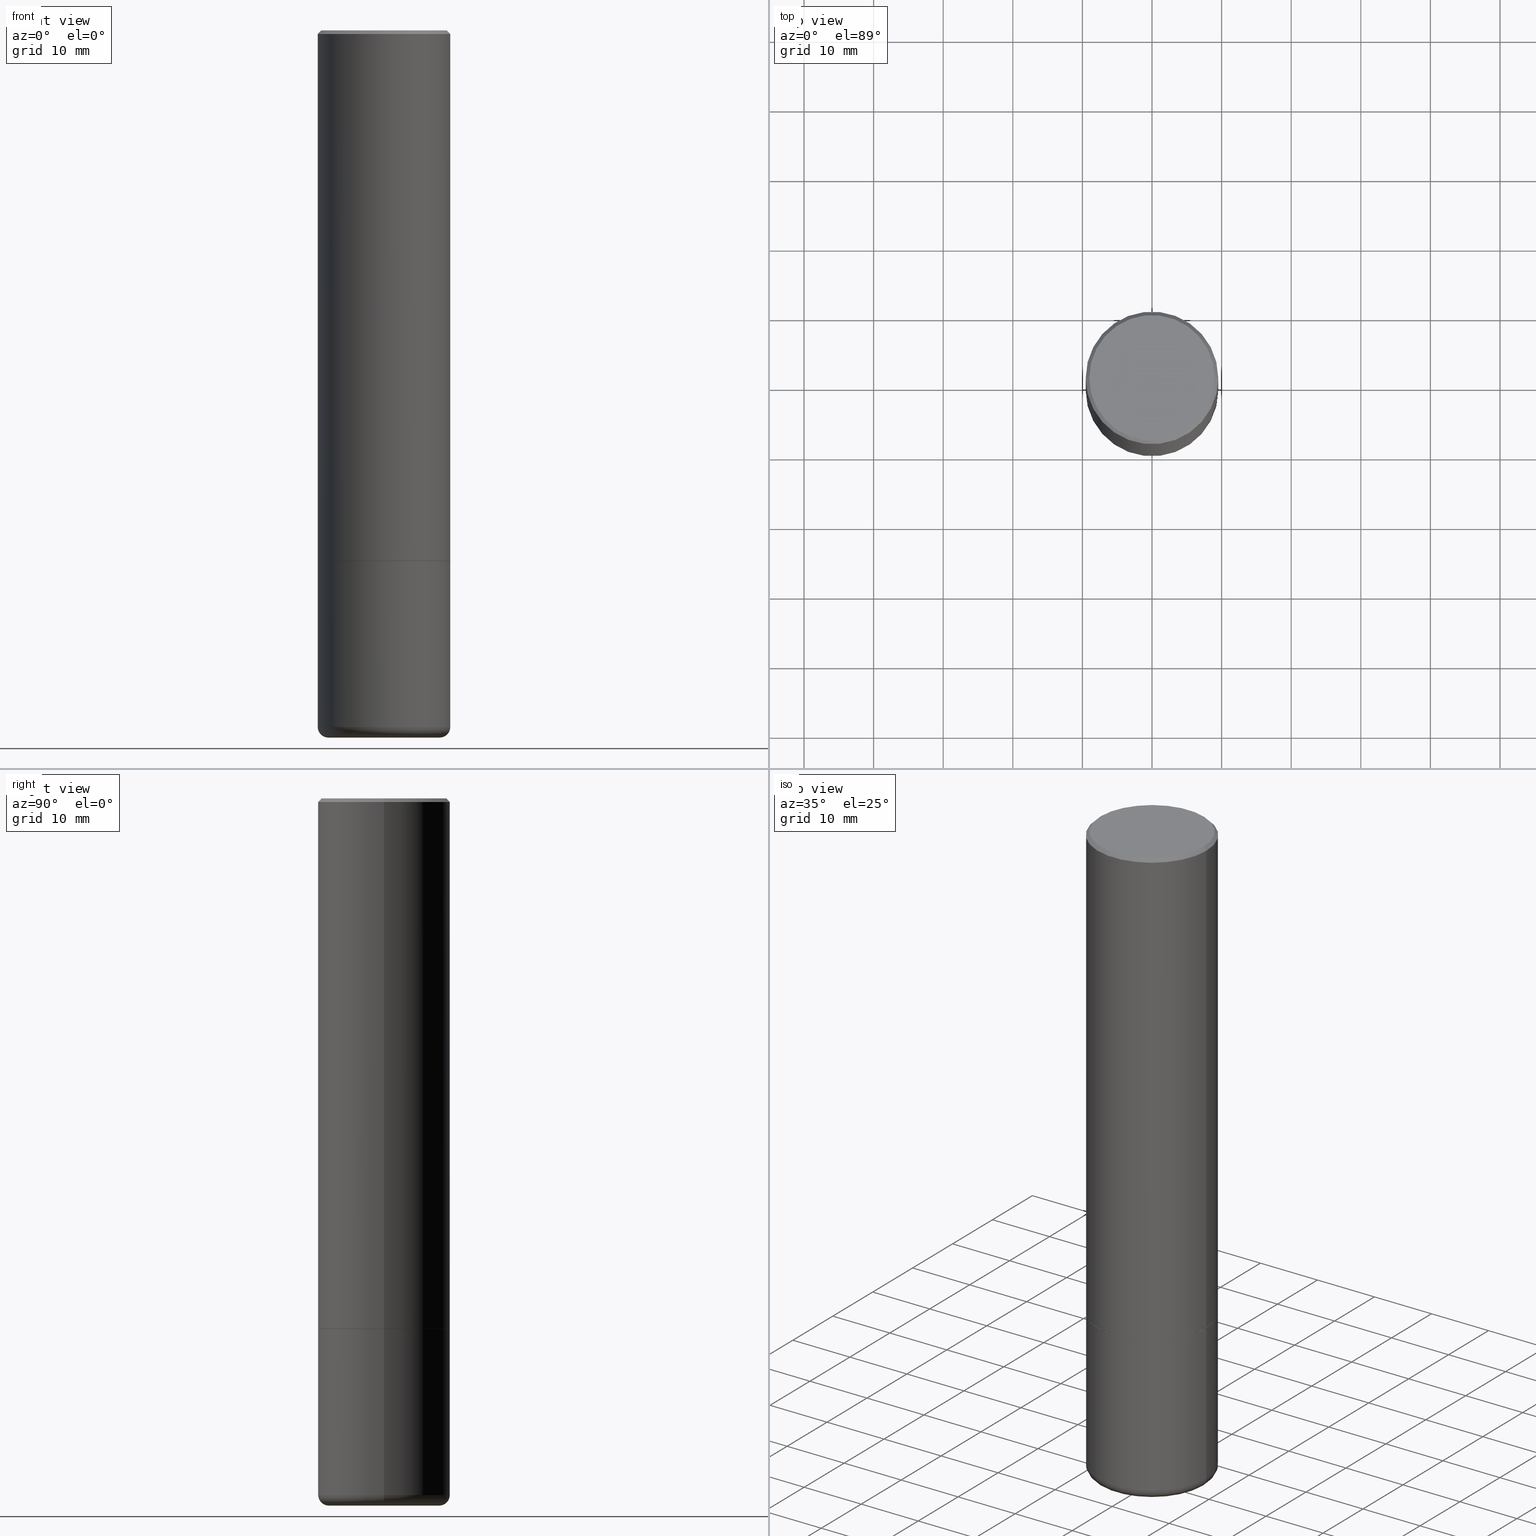
[diagram: canonical four-view strip — front | top / right | iso, engineering-drawing reading convention]
A machine part, canonical four-view strip (front | top / right | iso — engineering-drawing reading convention). The complete STEP part file that produces these views, byte-faithful:
ISO-10303-21;
HEADER;
FILE_DESCRIPTION (( 'STEP AP203' ),
    '1' );
FILE_NAME ('35718.STEP',
    '2022-11-02T20:51:11',
    ( '' ),
    ( '' ),
    'SwSTEP 2.0',
    'SolidWorks 2022',
    '' );
FILE_SCHEMA (( 'CONFIG_CONTROL_DESIGN' ));
ENDSEC;

DATA;
#1 = CARTESIAN_POINT ( 'NONE',  ( -0.3144764078700981180, -1.141167263810427951E-14, -3.999999999999999556 ) ) ;
#2 = DIRECTION ( 'NONE',  ( -2.445468806185136597E-29, 3.491481338843145583E-15, 1.000000000000000000 ) ) ;
#3 = AXIS2_PLACEMENT_3D ( 'NONE', #208, #99, #251 ) ;
#4 = DATE_AND_TIME ( #416, #127 ) ;
#5 = VERTEX_POINT ( 'NONE', #72 ) ;
#6 = ADVANCED_FACE ( 'NONE', ( #216 ), #477, .T. ) ;
#7 = COORDINATED_UNIVERSAL_TIME_OFFSET ( 5, 0, .BEHIND. ) ;
#8 = ORIENTED_EDGE ( 'NONE', *, *, #370, .F. ) ;
#9 = VERTEX_POINT ( 'NONE', #410 ) ;
#10 = ORIENTED_EDGE ( 'NONE', *, *, #321, .F. ) ;
#11 = CIRCLE ( 'NONE', #362, 0.3750000000000000555 ) ;
#12 = CALENDAR_DATE ( 2022, 2, 11 ) ;
#13 = PRODUCT_DEFINITION_FORMATION_WITH_SPECIFIED_SOURCE ( 'ANY', '', #43, .NOT_KNOWN. ) ;
#14 = VERTEX_POINT ( 'NONE', #78 ) ;
#15 = EDGE_CURVE ( 'NONE', #421, #14, #221, .T. ) ;
#16 = CARTESIAN_POINT ( 'NONE',  ( 4.890937612370327459E-31, -6.982962677686369262E-17, -0.02000000000000022246 ) ) ;
#17 = DATE_AND_TIME ( #12, #447 ) ;
#18 = EDGE_CURVE ( 'NONE', #9, #407, #233, .T. ) ;
#19 = ORIENTED_EDGE ( 'NONE', *, *, #18, .F. ) ;
#20 = ADVANCED_FACE ( 'NONE', ( #175 ), #200, .T. ) ;
#21 = DIRECTION ( 'NONE',  ( 1.000000000000000000, -6.982962677686266711E-15, 0.000000000000000000 ) ) ;
#22 = LINE ( 'NONE', #65, #108 ) ;
#23 = ORGANIZATION ( 'UNSPECIFIED', 'UNSPECIFIED', '' ) ;
#24 = ORIENTED_EDGE ( 'NONE', *, *, #334, .F. ) ;
#25 = DIRECTION ( 'NONE',  ( -2.445468806185136597E-29, 3.491481338843145583E-15, 1.000000000000000000 ) ) ;
#26 = DIRECTION ( 'NONE',  ( -2.445468806185136877E-29, 3.491481338843145188E-15, 1.000000000000000000 ) ) ;
#27 = DIRECTION ( 'NONE',  ( 1.000000000000000000, -6.982962677686266711E-15, 0.000000000000000000 ) ) ;
#28 = CARTESIAN_POINT ( 'NONE',  ( 9.781021626775434250E-29, -1.396470664370530441E-14, -3.999650947105539256 ) ) ;
#29 = APPROVAL ( #431, 'UNSPECIFIED' ) ;
#30 = ADVANCED_FACE ( 'NONE', ( #403 ), #31, .T. ) ;
#31 = CONICAL_SURFACE ( 'NONE', #79, 0.3749999999999991673, 0.7853981633974476129 ) ;
#32 = DIRECTION ( 'NONE',  ( -2.445468806185136597E-29, 3.491481338843145583E-15, 1.000000000000000000 ) ) ;
#33 = CARTESIAN_POINT ( 'NONE',  ( 9.781021626775434250E-29, -1.396470664370530441E-14, -3.999650947105539256 ) ) ;
#34 = DIRECTION ( 'NONE',  ( -2.445468806185136597E-29, 3.491481338843145583E-15, 1.000000000000000000 ) ) ;
#35 = CARTESIAN_POINT ( 'NONE',  ( -0.3749999999999993894, -2.605855821883354597E-15, -2.999000000000000554 ) ) ;
#36 = DIRECTION ( 'NONE',  ( 1.000000000000000000, -6.982962677686269077E-15, 4.883557194083113462E-29 ) ) ;
#37 = LINE ( 'NONE', #227, #312 ) ;
#38 = AXIS2_PLACEMENT_3D ( 'NONE', #294, #177, #398 ) ;
#39 = DIRECTION ( 'NONE',  ( -1.000000000000000000, 6.982962677686266711E-15, 0.000000000000000000 ) ) ;
#40 = CARTESIAN_POINT ( 'NONE',  ( 4.890937612370327459E-31, -6.982962677686369262E-17, -0.02000000000000022246 ) ) ;
#41 = CARTESIAN_POINT ( 'NONE',  ( 0.3749999999999995004, -1.308956353932294179E-14, -2.999000000000000554 ) ) ;
#42 = ADVANCED_BREP_SHAPE_REPRESENTATION ( '35718', ( #166, #488, #141 ), #223 ) ;
#43 = PRODUCT ( '35718', '35718', '', ( #247 ) ) ;
#44 = PLANE ( 'NONE',  #210 ) ;
#45 = ORIENTED_EDGE ( 'NONE', *, *, #50, .F. ) ;
#46 = CIRCLE ( 'NONE', #125, 0.3750000000000000555 ) ;
#47 = AXIS2_PLACEMENT_3D ( 'NONE', #415, #2, #189 ) ;
#48 = APPROVAL_ROLE ( '' ) ;
#49 = ORIENTED_EDGE ( 'NONE', *, *, #52, .T. ) ;
#50 = EDGE_CURVE ( 'NONE', #444, #115, #438, .T. ) ;
#51 = EDGE_LOOP ( 'NONE', ( #284, #269, #272, #134 ) ) ;
#52 = EDGE_CURVE ( 'NONE', #373, #5, #138, .T. ) ;
#53 = AXIS2_PLACEMENT_3D ( 'NONE', #364, #34, #261 ) ;
#54 = AXIS2_PLACEMENT_3D ( 'NONE', #180, #353, #397 ) ;
#55 = APPROVAL_ROLE ( '' ) ;
#56 = VECTOR ( 'NONE', #193, 39.37007874015748143 ) ;
#57 = ORIENTED_EDGE ( 'NONE', *, *, #242, .T. ) ;
#58 = ADVANCED_FACE ( 'NONE', ( #71 ), #471, .F. ) ;
#59 = EDGE_CURVE ( 'NONE', #89, #14, #150, .T. ) ;
#60 = CARTESIAN_POINT ( 'NONE',  ( -0.2744789078700980989, -1.204803067423632125E-14, -3.999650947105539256 ) ) ;
#61 = ORIENTED_EDGE ( 'NONE', *, *, #375, .F. ) ;
#62 = UNCERTAINTY_MEASURE_WITH_UNIT (LENGTH_MEASURE( 1.000000000000000082E-05 ), #114, 'distance_accuracy_value', 'NONE');
#63 = CARTESIAN_POINT ( 'NONE',  ( 7.336406418555408669E-29, -1.047444401652943478E-14, -2.999999999999999556 ) ) ;
#64 = CIRCLE ( 'NONE', #244, 0.3749999999999995004 ) ;
#65 = CARTESIAN_POINT ( 'NONE',  ( -0.3144764078700981180, -1.176994833620283991E-14, -3.999999999999999556 ) ) ;
#66 = CARTESIAN_POINT ( 'NONE',  ( 7.336406418555408669E-29, -1.047444401652943478E-14, -2.999999999999999556 ) ) ;
#67 = DIRECTION ( 'NONE',  ( -2.445468806185136597E-29, 3.491481338843145583E-15, 1.000000000000000000 ) ) ;
#68 = DIRECTION ( 'NONE',  ( 2.445468806185136597E-29, -3.491481338843145583E-15, -1.000000000000000000 ) ) ;
#69 = CARTESIAN_POINT ( 'NONE',  ( 9.635152683326964355E-29, -1.375644445173664487E-14, -3.940002284616149097 ) ) ;
#70 = DIRECTION ( 'NONE',  ( 0.9999619230641714207, -6.890705306874777996E-15, -0.008726535498355246501 ) ) ;
#71 = FACE_OUTER_BOUND ( 'NONE', #90, .T. ) ;
#72 = CARTESIAN_POINT ( 'NONE',  ( 0.3549999999999989275, -2.538996582575033948E-15, 4.268512490117958041E-18 ) ) ;
#73 = CONICAL_SURFACE ( 'NONE', #196, 0.3739999999999994995, 0.7853981633978239785 ) ;
#74 = ADVANCED_FACE ( 'NONE', ( #405 ), #209, .T. ) ;
#75 = DIRECTION ( 'NONE',  ( 0.7071067811868130271, -2.468850131085038979E-15, 0.7071067811862817853 ) ) ;
#76 = CARTESIAN_POINT ( 'NONE',  ( 9.781875224740545266E-29, -1.396592535537258075E-14, -3.999999999999999556 ) ) ;
#77 = DIRECTION ( 'NONE',  ( -2.445468806185136877E-29, 3.491481338843145188E-15, 1.000000000000000000 ) ) ;
#78 = CARTESIAN_POINT ( 'NONE',  ( -0.3749999999999991673, 2.548781377355480407E-15, -0.02000000000000022246 ) ) ;
#79 = AXIS2_PLACEMENT_3D ( 'NONE', #476, #473, #290 ) ;
#80 = EDGE_CURVE ( 'NONE', #231, #421, #365, .T. ) ;
#81 = CONICAL_SURFACE ( 'NONE', #479, 0.2744789078700980989, 1.535889741755008808 ) ;
#82 = CARTESIAN_POINT ( 'NONE',  ( 0.3150000000000002798, -1.595607769520781983E-14, -3.940002284616149097 ) ) ;
#83 = DIRECTION ( 'NONE',  ( 1.000000000000000000, -6.982962677686266711E-15, 0.000000000000000000 ) ) ;
#84 = CARTESIAN_POINT ( 'NONE',  ( -0.3549999999999989275, 2.513866563967048758E-15, 4.268512490082953109E-18 ) ) ;
#85 = ORIENTED_EDGE ( 'NONE', *, *, #80, .F. ) ;
#86 = ORIENTED_EDGE ( 'NONE', *, *, #486, .T. ) ;
#87 = COORDINATED_UNIVERSAL_TIME_OFFSET ( 5, 0, .BEHIND. ) ;
#88 = LOCAL_TIME ( 16, 51, 11.00000000000000000, #306 ) ;
#89 = VERTEX_POINT ( 'NONE', #324 ) ;
#90 = EDGE_LOOP ( 'NONE', ( #350, #170 ) ) ;
#91 = ADVANCED_FACE ( 'NONE', ( #483 ), #204, .F. ) ;
#92 = PERSON_AND_ORGANIZATION_ROLE ( 'design_supplier' ) ;
#93 = ORIENTED_EDGE ( 'NONE', *, *, #422, .T. ) ;
#94 = CLOSED_SHELL ( 'NONE', ( #169, #74, #20, #360, #179, #430, #148, #326, #91 ) ) ;
#95 = VECTOR ( 'NONE', #257, 39.37007874015748854 ) ;
#96 = CALENDAR_DATE ( 2022, 2, 11 ) ;
#97 = VERTEX_POINT ( 'NONE', #1 ) ;
#98 = DIRECTION ( 'NONE',  ( 2.445468806185136597E-29, -3.491481338843145583E-15, -1.000000000000000000 ) ) ;
#99 = DIRECTION ( 'NONE',  ( 2.445468806185136597E-29, -3.491481338843145583E-15, -1.000000000000000000 ) ) ;
#100 = AXIS2_PLACEMENT_3D ( 'NONE', #347, #351, #131 ) ;
#101 = CARTESIAN_POINT ( 'NONE',  ( 0.3739999999999994995, -1.308607205798409720E-14, -2.999999999999999556 ) ) ;
#102 = AXIS2_PLACEMENT_3D ( 'NONE', #331, #192, #413 ) ;
#103 = CC_DESIGN_DATE_AND_TIME_ASSIGNMENT ( #17, #199, ( #229 ) ) ;
#104 = DIRECTION ( 'NONE',  ( 1.000000000000000000, -6.982962677686267499E-15, 4.876176775795935232E-29 ) ) ;
#105 = ADVANCED_FACE ( 'NONE', ( #156 ), #329, .T. ) ;
#106 = FACE_OUTER_BOUND ( 'NONE', #381, .T. ) ;
#107 = LINE ( 'NONE', #303, #56 ) ;
#108 = VECTOR ( 'NONE', #472, 39.37007874015748854 ) ;
#109 = AXIS2_PLACEMENT_3D ( 'NONE', #82, #328, #219 ) ;
#110 = CARTESIAN_POINT ( 'NONE',  ( -0.2744789078700980989, -1.204803067423632125E-14, -3.999650947105539256 ) ) ;
#111 = DIRECTION ( 'NONE',  ( -2.445468806185136597E-29, 3.491481338843145583E-15, 1.000000000000000000 ) ) ;
#112 = DIRECTION ( 'NONE',  ( -2.445468806185136597E-29, 3.491481338843145583E-15, 1.000000000000000000 ) ) ;
#113 = ORIENTED_EDGE ( 'NONE', *, *, #436, .F. ) ;
#114 =( CONVERSION_BASED_UNIT ( 'INCH', #367 ) LENGTH_UNIT ( ) NAMED_UNIT ( #186 ) );
#115 = VERTEX_POINT ( 'NONE', #119 ) ;
#116 = CIRCLE ( 'NONE', #348, 0.2744789078700980989 ) ;
#117 = EDGE_CURVE ( 'NONE', #378, #288, #11, .T. ) ;
#118 = EDGE_CURVE ( 'NONE', #288, #407, #191, .T. ) ;
#119 = CARTESIAN_POINT ( 'NONE',  ( 0.2744789078700980989, -1.584776864157862841E-14, -3.999650947105539256 ) ) ;
#120 = LINE ( 'NONE', #110, #158 ) ;
#121 = ORIENTED_EDGE ( 'NONE', *, *, #59, .F. ) ;
#122 = DIRECTION ( 'NONE',  ( 1.000000000000000000, 0.000000000000000000, 0.000000000000000000 ) ) ;
#123 = ORIENTED_EDGE ( 'NONE', *, *, #395, .T. ) ;
#124 = PRODUCT_RELATED_PRODUCT_CATEGORY ( 'detail', '', ( #43 ) ) ;
#125 = AXIS2_PLACEMENT_3D ( 'NONE', #318, #358, #286 ) ;
#126 = LOCAL_TIME ( 16, 51, 11.00000000000000000, #87 ) ;
#127 = LOCAL_TIME ( 16, 51, 11.00000000000000000, #201 ) ;
#128 = APPLICATION_PROTOCOL_DEFINITION ( 'international standard', 'config_control_design', 1994, #302 ) ;
#129 = EDGE_LOOP ( 'NONE', ( #237, #315, #174, #195 ) ) ;
#130 = PERSON_AND_ORGANIZATION ( #396, #23 ) ;
#131 = DIRECTION ( 'NONE',  ( 1.000000000000000000, -6.982962677686265922E-15, 4.876176775795935793E-29 ) ) ;
#132 = APPROVAL_DATE_TIME ( #4, #29 ) ;
#133 = DIRECTION ( 'NONE',  ( 1.000000000000000000, -6.982962677686266711E-15, 0.000000000000000000 ) ) ;
#134 = ORIENTED_EDGE ( 'NONE', *, *, #242, .F. ) ;
#135 = DIRECTION ( 'NONE',  ( -2.445468806185136597E-29, 3.491481338843145583E-15, 1.000000000000000000 ) ) ;
#136 = LINE ( 'NONE', #442, #374 ) ;
#137 = DIRECTION ( 'NONE',  ( -2.445468806185136597E-29, 3.491481338843145583E-15, 1.000000000000000000 ) ) ;
#138 = CIRCLE ( 'NONE', #439, 0.3549999999999989275 ) ;
#139 = DIRECTION ( 'NONE',  ( -2.445468806185136597E-29, 3.491481338843145583E-15, 1.000000000000000000 ) ) ;
#140 = DIRECTION ( 'NONE',  ( -2.445468806185136597E-29, 3.491481338843145583E-15, 1.000000000000000000 ) ) ;
#141 = AXIS2_PLACEMENT_3D ( 'NONE', #461, #281, #122 ) ;
#142 = CARTESIAN_POINT ( 'NONE',  ( -0.3739999999999994995, -7.817014184786664031E-15, -2.999999999999999556 ) ) ;
#143 = DIRECTION ( 'NONE',  ( -1.000000000000000000, 6.982962677686266711E-15, 0.000000000000000000 ) ) ;
#144 = ORIENTED_EDGE ( 'NONE', *, *, #417, .T. ) ;
#145 = CARTESIAN_POINT ( 'NONE',  ( 9.781875224740545266E-29, -1.396592535537258075E-14, -3.999999999999999556 ) ) ;
#146 = DIRECTION ( 'NONE',  ( -1.000000000000000000, 7.105427357600993970E-15, 0.000000000000000000 ) ) ;
#147 = DIRECTION ( 'NONE',  ( 1.000000000000000000, -6.982962677686269077E-15, 0.000000000000000000 ) ) ;
#148 = ADVANCED_FACE ( 'NONE', ( #492 ), #154, .T. ) ;
#149 = CLOSED_SHELL ( 'NONE', ( #217, #313, #30, #105, #220, #6, #58, #474 ) ) ;
#150 = CIRCLE ( 'NONE', #459, 0.3749999999999991673 ) ;
#151 = AXIS2_PLACEMENT_3D ( 'NONE', #435, #139, #214 ) ;
#152 = DIRECTION ( 'NONE',  ( 2.438088387897960049E-29, -3.491481338843145188E-15, -1.000000000000000000 ) ) ;
#153 = ORIENTED_EDGE ( 'NONE', *, *, #417, .F. ) ;
#154 = CYLINDRICAL_SURFACE ( 'NONE', #190, 0.3749999999999997780 ) ;
#155 = EDGE_CURVE ( 'NONE', #14, #89, #316, .T. ) ;
#156 = FACE_OUTER_BOUND ( 'NONE', #400, .T. ) ;
#157 = CARTESIAN_POINT ( 'NONE',  ( 2.618611004132419436E-15, 0.3749999999999890088, -3.000000000000000888 ) ) ;
#158 = VECTOR ( 'NONE', #325, 39.37007874015747433 ) ;
#159 = EDGE_CURVE ( 'NONE', #407, #9, #64, .T. ) ;
#160 = APPROVAL ( #427, 'UNSPECIFIED' ) ;
#161 = PERSON_AND_ORGANIZATION_ROLE ( 'classification_officer' ) ;
#162 = EDGE_LOOP ( 'NONE', ( #379, #366, #305, #352 ) ) ;
#163 = PERSON_AND_ORGANIZATION ( #396, #23 ) ;
#164 = ORIENTED_EDGE ( 'NONE', *, *, #118, .T. ) ;
#165 = CIRCLE ( 'NONE', #47, 0.3749999999999995004 ) ;
#166 = MANIFOLD_SOLID_BREP ( 'Body-Move/Copy2[1]', #94 ) ;
#167 = EDGE_CURVE ( 'NONE', #231, #300, #310, .T. ) ;
#168 = DIRECTION ( 'NONE',  ( 1.000000000000000000, -6.982962677686266711E-15, 0.000000000000000000 ) ) ;
#169 = ADVANCED_FACE ( 'NONE', ( #390 ), #337, .F. ) ;
#170 = ORIENTED_EDGE ( 'NONE', *, *, #167, .F. ) ;
#171 = EDGE_LOOP ( 'NONE', ( #85, #240, #144, #24 ) ) ;
#172 = PERSON_AND_ORGANIZATION ( #396, #23 ) ;
#173 = EDGE_LOOP ( 'NONE', ( #346, #275, #57, #10 ) ) ;
#174 = ORIENTED_EDGE ( 'NONE', *, *, #59, .T. ) ;
#175 = FACE_OUTER_BOUND ( 'NONE', #248, .T. ) ;
#176 = AXIS2_PLACEMENT_3D ( 'NONE', #262, #406, #146 ) ;
#177 = DIRECTION ( 'NONE',  ( -2.445468806185136597E-29, 3.491481338843145583E-15, 1.000000000000000000 ) ) ;
#178 = EDGE_LOOP ( 'NONE', ( #49, #419 ) ) ;
#179 = ADVANCED_FACE ( 'NONE', ( #106 ), #432, .F. ) ;
#180 = CARTESIAN_POINT ( 'NONE',  ( 9.781875224740545266E-29, -1.396592535537258075E-14, -3.999999999999999556 ) ) ;
#181 = CARTESIAN_POINT ( 'NONE',  ( 9.781875224740545266E-29, -1.396592535537258075E-14, -3.999999999999999556 ) ) ;
#182 = DIRECTION ( 'NONE',  ( 1.000000000000000000, -6.982962677686266711E-15, 0.000000000000000000 ) ) ;
#183 = CC_DESIGN_SECURITY_CLASSIFICATION ( #394, ( #13 ) ) ;
#184 = DIRECTION ( 'NONE',  ( -0.7071067811868130271, 7.493145998871311837E-15, 0.7071067811862817853 ) ) ;
#185 = DIRECTION ( 'NONE',  ( 1.000000000000000000, -6.982962677686269077E-15, 0.000000000000000000 ) ) ;
#186 = DIMENSIONAL_EXPONENTS ( 1.000000000000000000, 0.000000000000000000, 0.000000000000000000, 0.000000000000000000, 0.000000000000000000, 0.000000000000000000, 0.000000000000000000 ) ;
#187 = FACE_OUTER_BOUND ( 'NONE', #178, .T. ) ;
#188 = ORIENTED_EDGE ( 'NONE', *, *, #50, .T. ) ;
#189 = DIRECTION ( 'NONE',  ( 1.000000000000000000, -6.982962677686266711E-15, 0.000000000000000000 ) ) ;
#190 = AXIS2_PLACEMENT_3D ( 'NONE', #449, #111, #263 ) ;
#191 = LINE ( 'NONE', #226, #265 ) ;
#192 = DIRECTION ( 'NONE',  ( -2.445468806185136597E-29, 3.491481338843145583E-15, 1.000000000000000000 ) ) ;
#193 = DIRECTION ( 'NONE',  ( -2.445468806185136877E-29, 3.491481338843145188E-15, 1.000000000000000000 ) ) ;
#194 = PERSON_AND_ORGANIZATION ( #396, #23 ) ;
#195 = ORIENTED_EDGE ( 'NONE', *, *, #197, .F. ) ;
#196 = AXIS2_PLACEMENT_3D ( 'NONE', #66, #25, #185 ) ;
#197 = EDGE_CURVE ( 'NONE', #373, #14, #211, .T. ) ;
#198 = AXIS2_PLACEMENT_3D ( 'NONE', #33, #137, #440 ) ;
#199 = DATE_TIME_ROLE ( 'creation_date' ) ;
#200 = CYLINDRICAL_SURFACE ( 'NONE', #478, 0.3749999999999997780 ) ;
#201 = COORDINATED_UNIVERSAL_TIME_OFFSET ( 5, 0, .BEHIND. ) ;
#202 = ORIENTED_EDGE ( 'NONE', *, *, #52, .F. ) ;
#203 = ORIENTED_EDGE ( 'NONE', *, *, #15, .T. ) ;
#204 = CONICAL_SURFACE ( 'NONE', #252, 0.3144764078700981180, 1.562069680534943661 ) ;
#205 = TOROIDAL_SURFACE ( 'NONE', #151, 0.3150000000000002798, 0.06000000000000023370 ) ;
#206 = DIRECTION ( 'NONE',  ( -2.445468806185136597E-29, 3.491481338843145583E-15, 1.000000000000000000 ) ) ;
#207 = ORIENTED_EDGE ( 'NONE', *, *, #118, .F. ) ;
#208 = CARTESIAN_POINT ( 'NONE',  ( 9.781021626775434250E-29, -1.396470664370530441E-14, -3.999650947105539256 ) ) ;
#209 = TOROIDAL_SURFACE ( 'NONE', #222, 0.3150000000000002798, 0.06000000000000023370 ) ;
#210 = AXIS2_PLACEMENT_3D ( 'NONE', #157, #152, #260 ) ;
#211 = LINE ( 'NONE', #357, #95 ) ;
#212 = FACE_OUTER_BOUND ( 'NONE', #258, .T. ) ;
#213 = CARTESIAN_POINT ( 'NONE',  ( -1.043851414335219820E-46, 1.490343170380447200E-32, 4.268512490100411279E-18 ) ) ;
#214 = DIRECTION ( 'NONE',  ( 1.000000000000000000, -6.982962677686269077E-15, 4.883557194083113462E-29 ) ) ;
#215 = FACE_OUTER_BOUND ( 'NONE', #445, .T. ) ;
#216 = FACE_OUTER_BOUND ( 'NONE', #171, .T. ) ;
#217 = ADVANCED_FACE ( 'NONE', ( #253 ), #73, .T. ) ;
#218 = ORIENTED_EDGE ( 'NONE', *, *, #411, .T. ) ;
#219 = DIRECTION ( 'NONE',  ( 1.000000000000000000, -6.982962677686271444E-15, 0.000000000000000000 ) ) ;
#220 = ADVANCED_FACE ( 'NONE', ( #212 ), #437, .T. ) ;
#221 = LINE ( 'NONE', #382, #418 ) ;
#222 = AXIS2_PLACEMENT_3D ( 'NONE', #69, #296, #36 ) ;
#223 =( GEOMETRIC_REPRESENTATION_CONTEXT ( 3 ) GLOBAL_UNCERTAINTY_ASSIGNED_CONTEXT ( ( #62 ) ) GLOBAL_UNIT_ASSIGNED_CONTEXT ( ( #114, #450, #371 ) ) REPRESENTATION_CONTEXT ( 'NONE', 'WORKASPACE' ) );
#224 = DIRECTION ( 'NONE',  ( -1.000000000000000000, 6.982962677686269077E-15, 0.000000000000000000 ) ) ;
#225 = ORIENTED_EDGE ( 'NONE', *, *, #155, .F. ) ;
#226 = CARTESIAN_POINT ( 'NONE',  ( -0.3749999999999997780, 2.664535259100374119E-15, -1.844600658845588477E-29 ) ) ;
#227 = CARTESIAN_POINT ( 'NONE',  ( 0.3739999999999994995, -1.308607205798409720E-14, -2.999999999999999556 ) ) ;
#228 = ORIENTED_EDGE ( 'NONE', *, *, #411, .F. ) ;
#229 = PRODUCT_DEFINITION ( 'UNKNOWN', '', #13, #480 ) ;
#230 = ORIENTED_EDGE ( 'NONE', *, *, #279, .F. ) ;
#231 = VERTEX_POINT ( 'NONE', #392 ) ;
#232 = APPROVAL_STATUS ( 'not_yet_approved' ) ;
#233 = CIRCLE ( 'NONE', #404, 0.3749999999999995004 ) ;
#234 = AXIS2_PLACEMENT_3D ( 'NONE', #181, #320, #475 ) ;
#235 = DIRECTION ( 'NONE',  ( 1.000000000000000000, -6.982962677686269077E-15, 0.000000000000000000 ) ) ;
#236 = DATE_AND_TIME ( #308, #126 ) ;
#237 = ORIENTED_EDGE ( 'NONE', *, *, #424, .F. ) ;
#238 = VERTEX_POINT ( 'NONE', #60 ) ;
#239 = PERSON_AND_ORGANIZATION_ROLE ( 'creator' ) ;
#240 = ORIENTED_EDGE ( 'NONE', *, *, #167, .T. ) ;
#241 = ORIENTED_EDGE ( 'NONE', *, *, #197, .T. ) ;
#242 = EDGE_CURVE ( 'NONE', #238, #97, #22, .T. ) ;
#243 = EDGE_LOOP ( 'NONE', ( #458, #354 ) ) ;
#244 = AXIS2_PLACEMENT_3D ( 'NONE', #276, #426, #133 ) ;
#245 = AXIS2_PLACEMENT_3D ( 'NONE', #491, #454, #147 ) ;
#246 = CARTESIAN_POINT ( 'NONE',  ( 7.336406418555408669E-29, -1.047444401652943478E-14, -2.999999999999999556 ) ) ;
#247 = MECHANICAL_CONTEXT ( 'NONE', #280, 'mechanical' ) ;
#248 = EDGE_LOOP ( 'NONE', ( #428, #164, #19, #228 ) ) ;
#249 = LINE ( 'NONE', #372, #266 ) ;
#250 = APPROVAL ( #232, 'UNSPECIFIED' ) ;
#251 = DIRECTION ( 'NONE',  ( -1.000000000000000000, 6.982962677686266711E-15, 0.000000000000000000 ) ) ;
#252 = AXIS2_PLACEMENT_3D ( 'NONE', #145, #68, #224 ) ;
#253 = FACE_OUTER_BOUND ( 'NONE', #282, .T. ) ;
#254 = DIRECTION ( 'NONE',  ( 0.9993908270190957621, -6.978169709227547010E-15, -0.03489949670250219738 ) ) ;
#255 = EDGE_CURVE ( 'NONE', #115, #340, #434, .T. ) ;
#256 = FACE_OUTER_BOUND ( 'NONE', #368, .T. ) ;
#257 = DIRECTION ( 'NONE',  ( -0.7071067811865469066, 2.468850131082251144E-15, -0.7071067811865479058 ) ) ;
#258 = EDGE_LOOP ( 'NONE', ( #433, #344, #485, #225 ) ) ;
#259 = AXIS2_PLACEMENT_3D ( 'NONE', #319, #67, #287 ) ;
#260 = DIRECTION ( 'NONE',  ( -1.000000000000000000, 6.982962677686265922E-15, -4.876176775795935793E-29 ) ) ;
#261 = DIRECTION ( 'NONE',  ( 1.000000000000000000, -6.982962677686269077E-15, 0.000000000000000000 ) ) ;
#262 = CARTESIAN_POINT ( 'NONE',  ( -0.3150000000000002798, -1.151823483409232651E-14, -3.940002284616149097 ) ) ;
#263 = DIRECTION ( 'NONE',  ( 1.000000000000000000, -6.982962677686265922E-15, 4.876176775795935793E-29 ) ) ;
#264 =( LENGTH_UNIT ( ) NAMED_UNIT ( * ) SI_UNIT ( $, .METRE. ) );
#265 = VECTOR ( 'NONE', #77, 39.37007874015748143 ) ;
#266 = VECTOR ( 'NONE', #448, 39.37007874015748854 ) ;
#267 = DIRECTION ( 'NONE',  ( -2.445468806185136597E-29, 3.491481338843145583E-15, 1.000000000000000000 ) ) ;
#268 = FACE_OUTER_BOUND ( 'NONE', #243, .T. ) ;
#269 = ORIENTED_EDGE ( 'NONE', *, *, #255, .T. ) ;
#270 = SHAPE_DEFINITION_REPRESENTATION ( #399, #42 ) ;
#271 = ORIENTED_EDGE ( 'NONE', *, *, #314, .F. ) ;
#272 = ORIENTED_EDGE ( 'NONE', *, *, #486, .F. ) ;
#273 = AXIS2_PLACEMENT_3D ( 'NONE', #16, #206, #168 ) ;
#274 = PERSON_AND_ORGANIZATION ( #396, #23 ) ;
#275 = ORIENTED_EDGE ( 'NONE', *, *, #333, .T. ) ;
#276 = CARTESIAN_POINT ( 'NONE',  ( 7.336406418555408669E-29, -1.047444401652943478E-14, -2.999999999999999556 ) ) ;
#277 = PERSON_AND_ORGANIZATION ( #396, #23 ) ;
#278 = ORIENTED_EDGE ( 'NONE', *, *, #155, .T. ) ;
#279 = EDGE_CURVE ( 'NONE', #288, #378, #46, .T. ) ;
#280 = APPLICATION_CONTEXT ( 'configuration controlled 3d designs of mechanical parts and assemblies' ) ;
#281 = DIRECTION ( 'NONE',  ( 0.000000000000000000, 0.000000000000000000, 1.000000000000000000 ) ) ;
#282 = EDGE_LOOP ( 'NONE', ( #123, #369, #61, #153 ) ) ;
#283 = ORIENTED_EDGE ( 'NONE', *, *, #436, .T. ) ;
#284 = ORIENTED_EDGE ( 'NONE', *, *, #342, .T. ) ;
#285 = DIRECTION ( 'NONE',  ( -2.445468806185136597E-29, 3.491481338843145583E-15, 1.000000000000000000 ) ) ;
#286 = DIRECTION ( 'NONE',  ( 1.000000000000000000, -6.982962677686266711E-15, 0.000000000000000000 ) ) ;
#287 = DIRECTION ( 'NONE',  ( 1.000000000000000000, -6.982962677686267499E-15, 4.876176775795935232E-29 ) ) ;
#288 = VERTEX_POINT ( 'NONE', #289 ) ;
#289 = CARTESIAN_POINT ( 'NONE',  ( -0.3750000000000000555, -9.450908975032663339E-15, -3.940002284616149097 ) ) ;
#290 = DIRECTION ( 'NONE',  ( -1.000000000000000000, 6.982962677686266711E-15, 0.000000000000000000 ) ) ;
#291 = CIRCLE ( 'NONE', #490, 0.3144764078700981180 ) ;
#292 = CYLINDRICAL_SURFACE ( 'NONE', #297, 0.3749999999999992784 ) ;
#293 = DIRECTION ( 'NONE',  ( 1.000000000000000000, -6.982962677686266711E-15, 4.876231632512002757E-29 ) ) ;
#294 = CARTESIAN_POINT ( 'NONE',  ( 7.333960949749226429E-29, -1.047095253519059492E-14, -2.999000000000000554 ) ) ;
#295 = DIRECTION ( 'NONE',  ( -1.000000000000000000, 6.982962677686265922E-15, -4.876176775795935793E-29 ) ) ;
#296 = DIRECTION ( 'NONE',  ( -2.445468806185136597E-29, 3.491481338843145583E-15, 1.000000000000000000 ) ) ;
#297 = AXIS2_PLACEMENT_3D ( 'NONE', #470, #467, #104 ) ;
#298 = CARTESIAN_POINT ( 'NONE',  ( -0.3749999999999995004, -9.450908975032666494E-15, -2.999999999999999556 ) ) ;
#299 = APPROVAL_PERSON_ORGANIZATION ( #172, #160, #55 ) ;
#300 = VERTEX_POINT ( 'NONE', #101 ) ;
#301 = DIRECTION ( 'NONE',  ( 2.445468806185136597E-29, -3.491481338843145583E-15, -1.000000000000000000 ) ) ;
#302 = APPLICATION_CONTEXT ( 'configuration controlled 3d designs of mechanical parts and assemblies' ) ;
#303 = CARTESIAN_POINT ( 'NONE',  ( 0.3749999999999997780, -2.618611004132348044E-15, 1.828566290923474801E-29 ) ) ;
#304 = CIRCLE ( 'NONE', #102, 0.3549999999999989275 ) ;
#305 = ORIENTED_EDGE ( 'NONE', *, *, #117, .F. ) ;
#306 = COORDINATED_UNIVERSAL_TIME_OFFSET ( 5, 0, .BEHIND. ) ;
#307 = ORIENTED_EDGE ( 'NONE', *, *, #159, .F. ) ;
#308 = CALENDAR_DATE ( 2022, 2, 11 ) ;
#309 = DIRECTION ( 'NONE',  ( -2.445468806185136597E-29, 3.491481338843145583E-15, 1.000000000000000000 ) ) ;
#310 = CIRCLE ( 'NONE', #384, 0.3739999999999994995 ) ;
#311 = ORIENTED_EDGE ( 'NONE', *, *, #469, .F. ) ;
#312 = VECTOR ( 'NONE', #75, 39.37007874015748854 ) ;
#313 = ADVANCED_FACE ( 'NONE', ( #215 ), #292, .T. ) ;
#314 = EDGE_CURVE ( 'NONE', #391, #89, #136, .T. ) ;
#315 = ORIENTED_EDGE ( 'NONE', *, *, #370, .T. ) ;
#316 = CIRCLE ( 'NONE', #273, 0.3749999999999991673 ) ;
#317 = CIRCLE ( 'NONE', #109, 0.06000000000000024758 ) ;
#318 = CARTESIAN_POINT ( 'NONE',  ( 9.635152683326964355E-29, -1.375644445173664487E-14, -3.940002284616149097 ) ) ;
#319 = CARTESIAN_POINT ( 'NONE',  ( 0.000000000000000000, 0.000000000000000000, 0.000000000000000000 ) ) ;
#320 = DIRECTION ( 'NONE',  ( -2.445468806185136597E-29, 3.491481338843145583E-15, 1.000000000000000000 ) ) ;
#321 = EDGE_CURVE ( 'NONE', #340, #97, #446, .T. ) ;
#322 = CIRCLE ( 'NONE', #245, 0.3739999999999994995 ) ;
#323 = FACE_OUTER_BOUND ( 'NONE', #425, .T. ) ;
#324 = CARTESIAN_POINT ( 'NONE',  ( 0.3749999999999991673, -2.642516375941182112E-15, -0.02000000000000022246 ) ) ;
#325 = DIRECTION ( 'NONE',  ( -0.9993908270190957621, 6.856857904024552526E-15, -0.03489949670250219738 ) ) ;
#326 = ADVANCED_FACE ( 'NONE', ( #256 ), #205, .T. ) ;
#327 = CC_DESIGN_PERSON_AND_ORGANIZATION_ASSIGNMENT ( #194, #377, ( #229 ) ) ;
#328 = DIRECTION ( 'NONE',  ( -6.982962677686266711E-15, -1.000000000000000000, 3.491481338843145583E-15 ) ) ;
#329 = CONICAL_SURFACE ( 'NONE', #489, 0.3749999999999991673, 0.7853981633974476129 ) ;
#330 = VECTOR ( 'NONE', #184, 39.37007874015748854 ) ;
#331 = CARTESIAN_POINT ( 'NONE',  ( -1.043851414335219820E-46, 1.490343170380447200E-32, 4.268512490100411279E-18 ) ) ;
#332 = APPROVAL_PERSON_ORGANIZATION ( #130, #29, #349 ) ;
#333 = EDGE_CURVE ( 'NONE', #115, #238, #420, .T. ) ;
#334 = EDGE_CURVE ( 'NONE', #421, #391, #376, .T. ) ;
#335 = PLANE ( 'NONE',  #386 ) ;
#336 = PERSON_AND_ORGANIZATION ( #396, #23 ) ;
#337 = CONICAL_SURFACE ( 'NONE', #54, 0.3144764078700981180, 1.562069680534943661 ) ;
#338 = CC_DESIGN_APPROVAL ( #29, ( #229 ) ) ;
#339 = DATE_AND_TIME ( #96, #88 ) ;
#340 = VERTEX_POINT ( 'NONE', #361 ) ;
#341 = CARTESIAN_POINT ( 'NONE',  ( 0.000000000000000000, 0.000000000000000000, 0.000000000000000000 ) ) ;
#342 = EDGE_CURVE ( 'NONE', #238, #115, #116, .T. ) ;
#343 = CALENDAR_DATE ( 2022, 2, 11 ) ;
#344 = ORIENTED_EDGE ( 'NONE', *, *, #334, .T. ) ;
#345 = APPROVAL_DATE_TIME ( #383, #250 ) ;
#346 = ORIENTED_EDGE ( 'NONE', *, *, #255, .F. ) ;
#347 = CARTESIAN_POINT ( 'NONE',  ( 7.336406418555408669E-29, -1.047444401652943478E-14, -2.999999999999999556 ) ) ;
#348 = AXIS2_PLACEMENT_3D ( 'NONE', #28, #135, #182 ) ;
#349 = APPROVAL_ROLE ( '' ) ;
#350 = ORIENTED_EDGE ( 'NONE', *, *, #395, .F. ) ;
#351 = DIRECTION ( 'NONE',  ( -2.438088387897960049E-29, 3.491481338843145188E-15, 1.000000000000000000 ) ) ;
#352 = ORIENTED_EDGE ( 'NONE', *, *, #422, .F. ) ;
#353 = DIRECTION ( 'NONE',  ( 2.445468806185136597E-29, -3.491481338843145583E-15, -1.000000000000000000 ) ) ;
#354 = ORIENTED_EDGE ( 'NONE', *, *, #159, .T. ) ;
#355 = VECTOR ( 'NONE', #254, 39.37007874015747433 ) ;
#356 = CC_DESIGN_APPROVAL ( #160, ( #13 ) ) ;
#357 = CARTESIAN_POINT ( 'NONE',  ( -0.3749999999999991673, 2.548781377355480407E-15, -0.02000000000000022246 ) ) ;
#358 = DIRECTION ( 'NONE',  ( -2.445468806185136597E-29, 3.491481338843145583E-15, 1.000000000000000000 ) ) ;
#359 = CARTESIAN_POINT ( 'NONE',  ( 0.2744789078700980989, -1.584776864157862841E-14, -3.999650947105539256 ) ) ;
#360 = ADVANCED_FACE ( 'NONE', ( #323 ), #81, .F. ) ;
#361 = CARTESIAN_POINT ( 'NONE',  ( 0.3144764078700981180, -1.616190237454231844E-14, -3.999999999999999556 ) ) ;
#362 = AXIS2_PLACEMENT_3D ( 'NONE', #451, #414, #83 ) ;
#363 = LOCAL_TIME ( 16, 51, 11.00000000000000000, #7 ) ;
#364 = CARTESIAN_POINT ( 'NONE',  ( 7.336406418555408669E-29, -1.047444401652943478E-14, -2.999999999999999556 ) ) ;
#365 = LINE ( 'NONE', #142, #330 ) ;
#366 = ORIENTED_EDGE ( 'NONE', *, *, #469, .T. ) ;
#367 = LENGTH_MEASURE_WITH_UNIT ( LENGTH_MEASURE( 0.02539999999999999897 ), #264 );
#368 = EDGE_LOOP ( 'NONE', ( #311, #86, #93, #230 ) ) ;
#369 = ORIENTED_EDGE ( 'NONE', *, *, #80, .T. ) ;
#370 = EDGE_CURVE ( 'NONE', #5, #89, #249, .T. ) ;
#371 =( NAMED_UNIT ( * ) SI_UNIT ( $, .STERADIAN. ) SOLID_ANGLE_UNIT ( ) );
#372 = CARTESIAN_POINT ( 'NONE',  ( 0.3749999999999991673, -2.642516375941182112E-15, -0.02000000000000022246 ) ) ;
#373 = VERTEX_POINT ( 'NONE', #84 ) ;
#374 = VECTOR ( 'NONE', #26, 39.37007874015748143 ) ;
#375 = EDGE_CURVE ( 'NONE', #391, #421, #165, .T. ) ;
#376 = CIRCLE ( 'NONE', #38, 0.3749999999999995004 ) ;
#377 = PERSON_AND_ORGANIZATION_ROLE ( 'creator' ) ;
#378 = VERTEX_POINT ( 'NONE', #487 ) ;
#379 = ORIENTED_EDGE ( 'NONE', *, *, #321, .T. ) ;
#380 = PERSON_AND_ORGANIZATION ( #396, #23 ) ;
#381 = EDGE_LOOP ( 'NONE', ( #45, #283, #466 ) ) ;
#382 = CARTESIAN_POINT ( 'NONE',  ( -0.3749999999999992784, 2.664535259100370569E-15, -1.844600658845586235E-29 ) ) ;
#383 = DATE_AND_TIME ( #343, #363 ) ;
#384 = AXIS2_PLACEMENT_3D ( 'NONE', #63, #267, #235 ) ;
#385 = ORIENTED_EDGE ( 'NONE', *, *, #279, .T. ) ;
#386 = AXIS2_PLACEMENT_3D ( 'NONE', #409, #408, #295 ) ;
#387 = APPROVAL_DATE_TIME ( #339, #160 ) ;
#388 = EDGE_LOOP ( 'NONE', ( #207, #385, #218, #307 ) ) ;
#389 = CC_DESIGN_PERSON_AND_ORGANIZATION_ASSIGNMENT ( #274, #92, ( #13 ) ) ;
#390 = FACE_OUTER_BOUND ( 'NONE', #51, .T. ) ;
#391 = VERTEX_POINT ( 'NONE', #41 ) ;
#392 = CARTESIAN_POINT ( 'NONE',  ( -0.3739999999999994995, -7.811715730438443207E-15, -2.999999999999999556 ) ) ;
#393 = APPROVAL_PERSON_ORGANIZATION ( #380, #250, #48 ) ;
#394 = SECURITY_CLASSIFICATION ( '', '', #456 ) ;
#395 = EDGE_CURVE ( 'NONE', #300, #231, #322, .T. ) ;
#396 = PERSON ( 'UNSPECIFIED', 'UNSPECIFIED', 'UNSPECIFIED', ('UNSPECIFIED'), ('UNSPECIFIED'), ('UNSPECIFIED') ) ;
#397 = DIRECTION ( 'NONE',  ( -1.000000000000000000, 6.982962677686269077E-15, 0.000000000000000000 ) ) ;
#398 = DIRECTION ( 'NONE',  ( 1.000000000000000000, -6.982962677686266711E-15, 0.000000000000000000 ) ) ;
#399 = PRODUCT_DEFINITION_SHAPE ( 'NONE', 'NONE',  #229 ) ;
#400 = EDGE_LOOP ( 'NONE', ( #8, #202, #241, #278 ) ) ;
#401 = CARTESIAN_POINT ( 'NONE',  ( 0.3144764078700981180, -1.612339012191177310E-14, -3.999999999999999556 ) ) ;
#402 = CC_DESIGN_PERSON_AND_ORGANIZATION_ASSIGNMENT ( #163, #239, ( #13 ) ) ;
#403 = FACE_OUTER_BOUND ( 'NONE', #129, .T. ) ;
#404 = AXIS2_PLACEMENT_3D ( 'NONE', #246, #285, #21 ) ;
#405 = FACE_OUTER_BOUND ( 'NONE', #162, .T. ) ;
#406 = DIRECTION ( 'NONE',  ( 7.105427357601001859E-15, 1.000000000000000000, -3.491481338843145583E-15 ) ) ;
#407 = VERTEX_POINT ( 'NONE', #298 ) ;
#408 = DIRECTION ( 'NONE',  ( 2.438088387897960049E-29, -3.491481338843145188E-15, -1.000000000000000000 ) ) ;
#409 = CARTESIAN_POINT ( 'NONE',  ( 2.478951750578617109E-15, 0.3549999999999989275, -1.237341619044262680E-15 ) ) ;
#410 = CARTESIAN_POINT ( 'NONE',  ( 0.3749999999999995004, -1.309305502066178164E-14, -2.999999999999999556 ) ) ;
#411 = EDGE_CURVE ( 'NONE', #378, #9, #107, .T. ) ;
#412 = CC_DESIGN_APPROVAL ( #250, ( #394 ) ) ;
#413 = DIRECTION ( 'NONE',  ( 1.000000000000000000, -6.982962677686266711E-15, 4.876231632512002757E-29 ) ) ;
#414 = DIRECTION ( 'NONE',  ( -2.445468806185136597E-29, 3.491481338843145583E-15, 1.000000000000000000 ) ) ;
#415 = CARTESIAN_POINT ( 'NONE',  ( 7.333960949749226429E-29, -1.047095253519059492E-14, -2.999000000000000554 ) ) ;
#416 = CALENDAR_DATE ( 2022, 2, 11 ) ;
#417 = EDGE_CURVE ( 'NONE', #300, #391, #37, .T. ) ;
#418 = VECTOR ( 'NONE', #463, 39.37007874015748143 ) ;
#419 = ORIENTED_EDGE ( 'NONE', *, *, #424, .T. ) ;
#420 = CIRCLE ( 'NONE', #198, 0.2744789078700980989 ) ;
#421 = VERTEX_POINT ( 'NONE', #35 ) ;
#422 = EDGE_CURVE ( 'NONE', #340, #378, #317, .T. ) ;
#423 = COORDINATED_UNIVERSAL_TIME_OFFSET ( 5, 0, .BEHIND. ) ;
#424 = EDGE_CURVE ( 'NONE', #5, #373, #304, .T. ) ;
#425 = EDGE_LOOP ( 'NONE', ( #113, #188, #441 ) ) ;
#426 = DIRECTION ( 'NONE',  ( -2.445468806185136597E-29, 3.491481338843145583E-15, 1.000000000000000000 ) ) ;
#427 = APPROVAL_STATUS ( 'not_yet_approved' ) ;
#428 = ORIENTED_EDGE ( 'NONE', *, *, #117, .T. ) ;
#429 = CC_DESIGN_PERSON_AND_ORGANIZATION_ASSIGNMENT ( #336, #161, ( #394 ) ) ;
#430 = ADVANCED_FACE ( 'NONE', ( #268 ), #44, .F. ) ;
#431 = APPROVAL_STATUS ( 'not_yet_approved' ) ;
#432 = CONICAL_SURFACE ( 'NONE', #3, 0.2744789078700980989, 1.535889741755008808 ) ;
#433 = ORIENTED_EDGE ( 'NONE', *, *, #15, .F. ) ;
#434 = LINE ( 'NONE', #401, #468 ) ;
#435 = CARTESIAN_POINT ( 'NONE',  ( 9.635152683326964355E-29, -1.375644445173664487E-14, -3.940002284616149097 ) ) ;
#436 = EDGE_CURVE ( 'NONE', #444, #238, #120, .T. ) ;
#437 = CYLINDRICAL_SURFACE ( 'NONE', #259, 0.3749999999999992784 ) ;
#438 = LINE ( 'NONE', #359, #355 ) ;
#439 = AXIS2_PLACEMENT_3D ( 'NONE', #213, #140, #293 ) ;
#440 = DIRECTION ( 'NONE',  ( 1.000000000000000000, -6.982962677686266711E-15, 0.000000000000000000 ) ) ;
#441 = ORIENTED_EDGE ( 'NONE', *, *, #342, .F. ) ;
#442 = CARTESIAN_POINT ( 'NONE',  ( 0.3749999999999992784, -2.618611004132345283E-15, 1.828566290923472279E-29 ) ) ;
#443 = DIRECTION ( 'NONE',  ( 1.000000000000000000, -6.982962677686269077E-15, 0.000000000000000000 ) ) ;
#444 = VERTEX_POINT ( 'NONE', #484 ) ;
#445 = EDGE_LOOP ( 'NONE', ( #465, #203, #121, #271 ) ) ;
#446 = CIRCLE ( 'NONE', #234, 0.3144764078700981180 ) ;
#447 = LOCAL_TIME ( 16, 51, 11.00000000000000000, #423 ) ;
#448 = DIRECTION ( 'NONE',  ( 0.7071067811865469066, -7.319954787623252890E-15, -0.7071067811865479058 ) ) ;
#449 = CARTESIAN_POINT ( 'NONE',  ( 0.000000000000000000, 0.000000000000000000, 0.000000000000000000 ) ) ;
#450 =( NAMED_UNIT ( * ) PLANE_ANGLE_UNIT ( ) SI_UNIT ( $, .RADIAN. ) );
#451 = CARTESIAN_POINT ( 'NONE',  ( 9.635152683326964355E-29, -1.375644445173664487E-14, -3.940002284616149097 ) ) ;
#452 = APPLICATION_PROTOCOL_DEFINITION ( 'international standard', 'config_control_design', 1994, #280 ) ;
#453 = CARTESIAN_POINT ( 'NONE',  ( 4.890937612370327459E-31, -6.982962677686369262E-17, -0.02000000000000022246 ) ) ;
#454 = DIRECTION ( 'NONE',  ( -2.445468806185136597E-29, 3.491481338843145583E-15, 1.000000000000000000 ) ) ;
#455 = CC_DESIGN_DATE_AND_TIME_ASSIGNMENT ( #236, #457, ( #394 ) ) ;
#456 = SECURITY_CLASSIFICATION_LEVEL ( 'unclassified' ) ;
#457 = DATE_TIME_ROLE ( 'classification_date' ) ;
#458 = ORIENTED_EDGE ( 'NONE', *, *, #18, .T. ) ;
#459 = AXIS2_PLACEMENT_3D ( 'NONE', #40, #32, #27 ) ;
#460 = CIRCLE ( 'NONE', #176, 0.06000000000000024758 ) ;
#461 = CARTESIAN_POINT ( 'NONE',  ( 0.000000000000000000, 0.000000000000000000, 0.000000000000000000 ) ) ;
#462 = CC_DESIGN_PERSON_AND_ORGANIZATION_ASSIGNMENT ( #277, #464, ( #43 ) ) ;
#463 = DIRECTION ( 'NONE',  ( -2.445468806185136877E-29, 3.491481338843145188E-15, 1.000000000000000000 ) ) ;
#464 = PERSON_AND_ORGANIZATION_ROLE ( 'design_owner' ) ;
#465 = ORIENTED_EDGE ( 'NONE', *, *, #375, .T. ) ;
#466 = ORIENTED_EDGE ( 'NONE', *, *, #333, .F. ) ;
#467 = DIRECTION ( 'NONE',  ( -2.445468806185136597E-29, 3.491481338843145583E-15, 1.000000000000000000 ) ) ;
#468 = VECTOR ( 'NONE', #70, 39.37007874015748854 ) ;
#469 = EDGE_CURVE ( 'NONE', #97, #288, #460, .T. ) ;
#470 = CARTESIAN_POINT ( 'NONE',  ( 0.000000000000000000, 0.000000000000000000, 0.000000000000000000 ) ) ;
#471 = PLANE ( 'NONE',  #100 ) ;
#472 = DIRECTION ( 'NONE',  ( -0.9999619230641714207, 6.952228252019235511E-15, -0.008726535498355246501 ) ) ;
#473 = DIRECTION ( 'NONE',  ( 2.445468806185136597E-29, -3.491481338843145583E-15, -1.000000000000000000 ) ) ;
#474 = ADVANCED_FACE ( 'NONE', ( #187 ), #335, .F. ) ;
#475 = DIRECTION ( 'NONE',  ( 1.000000000000000000, -6.982962677686269077E-15, 0.000000000000000000 ) ) ;
#476 = CARTESIAN_POINT ( 'NONE',  ( 4.890937612370327459E-31, -6.982962677686369262E-17, -0.02000000000000022246 ) ) ;
#477 = CONICAL_SURFACE ( 'NONE', #53, 0.3739999999999994995, 0.7853981633978239785 ) ;
#478 = AXIS2_PLACEMENT_3D ( 'NONE', #341, #309, #482 ) ;
#479 = AXIS2_PLACEMENT_3D ( 'NONE', #481, #98, #143 ) ;
#480 = DESIGN_CONTEXT ( 'detailed design', #302, 'design' ) ;
#481 = CARTESIAN_POINT ( 'NONE',  ( 9.781021626775434250E-29, -1.396470664370530441E-14, -3.999650947105539256 ) ) ;
#482 = DIRECTION ( 'NONE',  ( 1.000000000000000000, -6.982962677686265922E-15, 4.876176775795935793E-29 ) ) ;
#483 = FACE_OUTER_BOUND ( 'NONE', #173, .T. ) ;
#484 = CARTESIAN_POINT ( 'NONE',  ( 9.757203950114914083E-29, -1.393178180684462720E-14, -3.990065932433460638 ) ) ;
#485 = ORIENTED_EDGE ( 'NONE', *, *, #314, .T. ) ;
#486 = EDGE_CURVE ( 'NONE', #97, #340, #291, .T. ) ;
#487 = CARTESIAN_POINT ( 'NONE',  ( 0.3750000000000000555, -1.637505545586899647E-14, -3.940002284616149097 ) ) ;
#488 = MANIFOLD_SOLID_BREP ( 'Body-Move/Copy2[2]', #149 ) ;
#489 = AXIS2_PLACEMENT_3D ( 'NONE', #453, #301, #39 ) ;
#490 = AXIS2_PLACEMENT_3D ( 'NONE', #76, #112, #443 ) ;
#491 = CARTESIAN_POINT ( 'NONE',  ( 7.336406418555408669E-29, -1.047444401652943478E-14, -2.999999999999999556 ) ) ;
#492 = FACE_OUTER_BOUND ( 'NONE', #388, .T. ) ;
ENDSEC;
END-ISO-10303-21;
